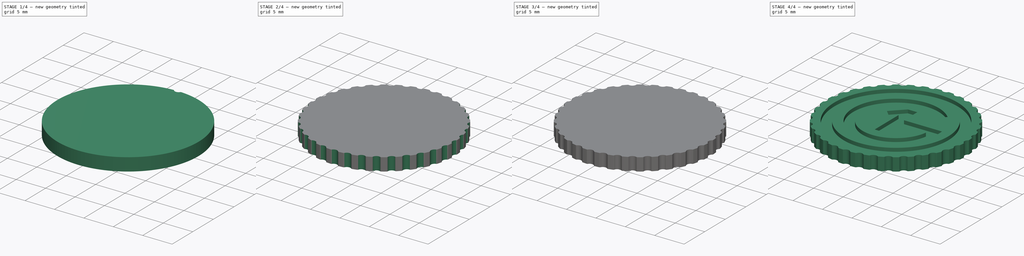
[diagram: build sequence overview — one tinted view per stage of 4, left to right]
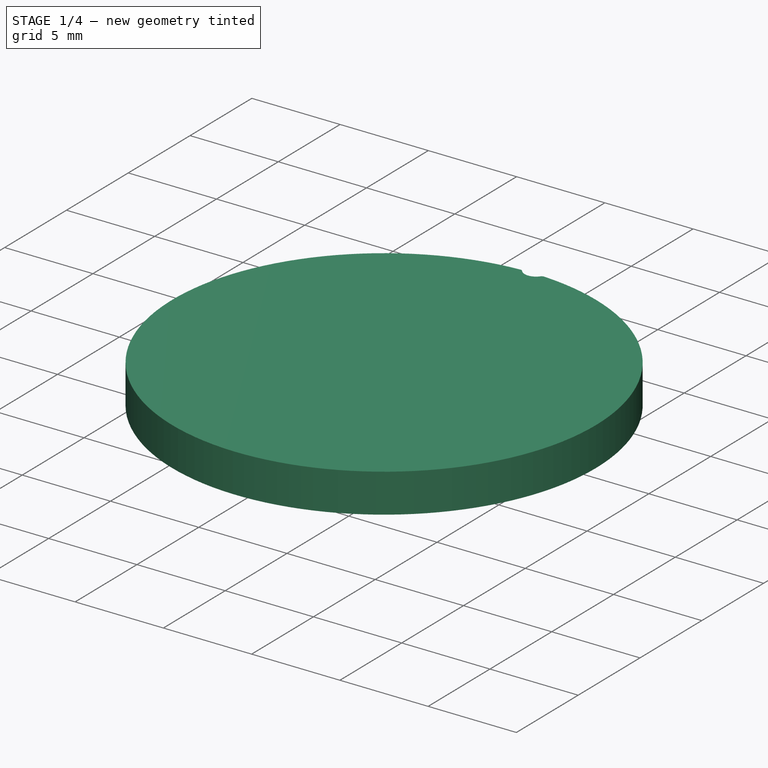
[diagram: stage 1 of 4 — iso view after this stage's code; geometry added in this stage tinted green]
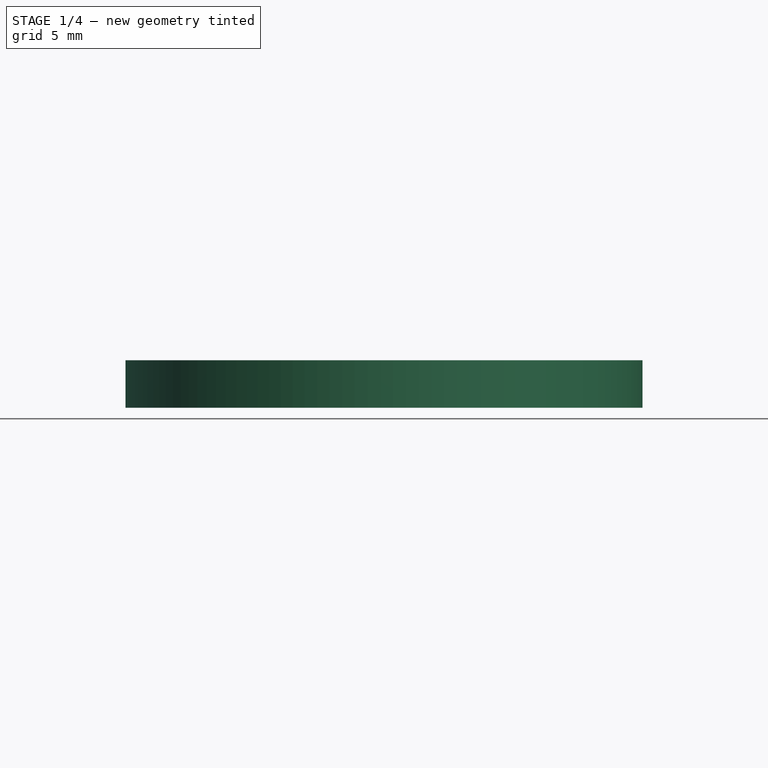
[diagram: stage 1 of 4 — front view after this stage's code; geometry added in this stage tinted green]
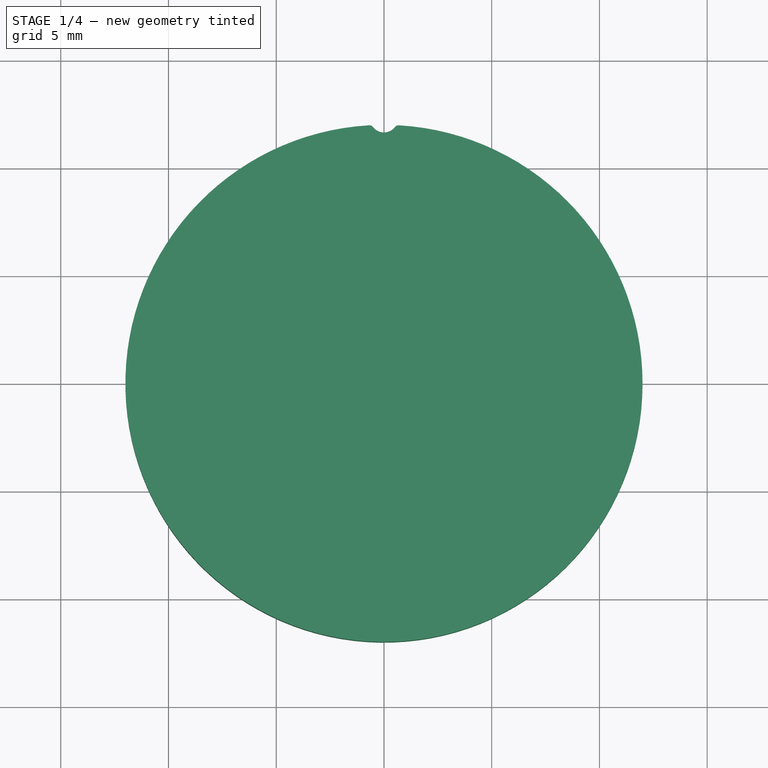
[diagram: stage 1 of 4 — top view after this stage's code; geometry added in this stage tinted green]
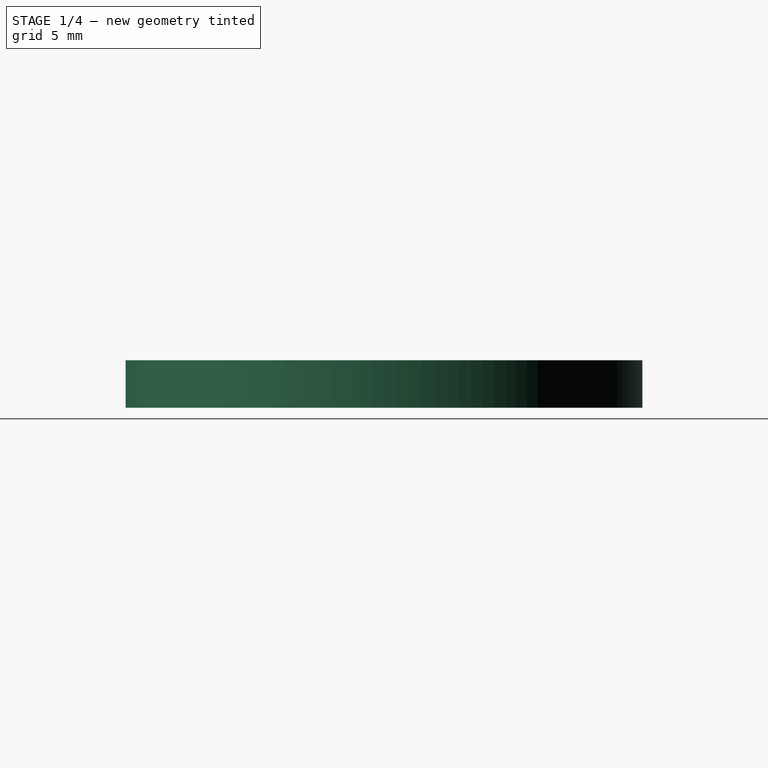
[diagram: stage 1 of 4 — right view after this stage's code; geometry added in this stage tinted green]
FCSTD DOCUMENT  (FreeCAD 0.21R33771 (Git))
Label: O1GCoin_multicolor
License: All rights reserved
LicenseURL: http://en.wikipedia.org/wiki/All_rights_reserved
objects: PartDesign::Body×5, Sketcher::SketchObject×4, PartDesign::Pad×3, Part::MultiFuse×2, PartDesign::FeatureBase×2, App::Part×1, PartDesign::Pocket×1, PartDesign::PolarPattern×1, Part::Cut×1
note: 23 computed .brp shape members not serialized (recipe doc carries the construction recipe); baked Part::Feature solids carry a one-line shape summary decoded from their .brp

FEATURE [PartDesign::Body] Body003  label="Surface1"
  Group = -> [Clone001]
  Origin = -> Origin004
  Tip = -> Clone001
FEATURE [Sketcher::SketchObject] Sketch009  label="C_Base"
  FullyConstrained = true
  MapMode = 5
  Support = -> [XY_Plane006]
  sketch-geometry (1):
    g0: Circle CenterX=0 CenterY=0 CenterZ=0 NormalX=0 NormalY=0 NormalZ=1 AngleXU=0 Radius=12
  constraints (2):
    c: Coincident(g0,g-1)
    c: Radius(g0) = 12  'R'
FEATURE [PartDesign::Pad] Pad002  label="C_Base_"
  AllowMultiFace = false
  Direction = (0,0,1)
  Length = 2.2
  Length2 = 100
  Profile = -> Sketch009
  Type = 0
FEATURE [Sketcher::SketchObject] Sketch008
  FullyConstrained = true
  MapMode = 5
  Support = -> [XY_Plane006]
  expr: Constraints[3] = <<C_Base>>.Constraints.R + 0.3 mm
  sketch-geometry (8):
    g0: ArcOfCircle CenterX=0 CenterY=12.3 CenterZ=0 NormalX=0 NormalY=0 NormalZ=1 AngleXU=0 Radius=0.65 StartAngle=3.7987 EndAngle=5.62607
    g1: Circle CenterX=0 CenterY=0 CenterZ=0 NormalX=0 NormalY=0 NormalZ=1 AngleXU=0 Radius=12
    g2: LineSegment StartX=-0.514644 StartY=11.903 StartZ=0 EndX=0.514644 EndY=11.903 EndZ=0
    g3: ArcOfCircle CenterX=0.672996 CenterY=11.7808 CenterZ=0 NormalX=0 NormalY=0 NormalZ=1 AngleXU=0 Radius=0.2 StartAngle=1.51373 EndAngle=2.48448
    g4: ArcOfCircle CenterX=-0.672996 CenterY=11.7808 CenterZ=0 NormalX=0 NormalY=0 NormalZ=1 AngleXU=0 Radius=0.2 StartAngle=0.657111 EndAngle=1.62784
    g5: LineSegment StartX=-0.684399 StartY=11.9805 StartZ=0 EndX=-0.684399 EndY=12.0805 EndZ=0
    g6: LineSegment StartX=-0.684399 StartY=12.0805 StartZ=0 EndX=0.684403 EndY=12.0805 EndZ=0
    g7: LineSegment StartX=0.684403 StartY=12.0805 StartZ=0 EndX=0.684403 EndY=11.9805 EndZ=0
  constraints (22):
    c: Coincident(g1,g-1)
    c: Radius(g1) = 12
    c: Radius(g0) = 0.65
    c: DistanceY(g1,g0) = 12.3
    c: PointOnObject(g0,g-2)
    c: Coincident(g2,g0)
    c: Coincident(g2,g0)
    c: Horizontal(g2)
    c: Tangent(g4,g0) = 1.5708
    c: Equal(g3,g4)
    c: Radius(g4) = 0.2
    c: Tangent(g3,g0) = 1.5708
    c: Tangent(g3,g1) = -1.5708
    c: PointOnObject(g4,g1)
    c: Coincident(g5,g4)
    c: Vertical(g5)
    c: Coincident(g6,g5)
    c: Horizontal(g6)
    c: Coincident(g7,g6)
    c: Coincident(g7,g3)
    c: Vertical(g7)
    c: DistanceY(g5,g5) = 0.1
FEATURE [PartDesign::Pocket] Pocket001
  AllowMultiFace = false
  BaseFeature = -> Pad002
  Direction = (0,0,-1)
  Length = 5
  Length2 = 100
  Profile = -> Sketch008
  Reversed = true
  Type = 1
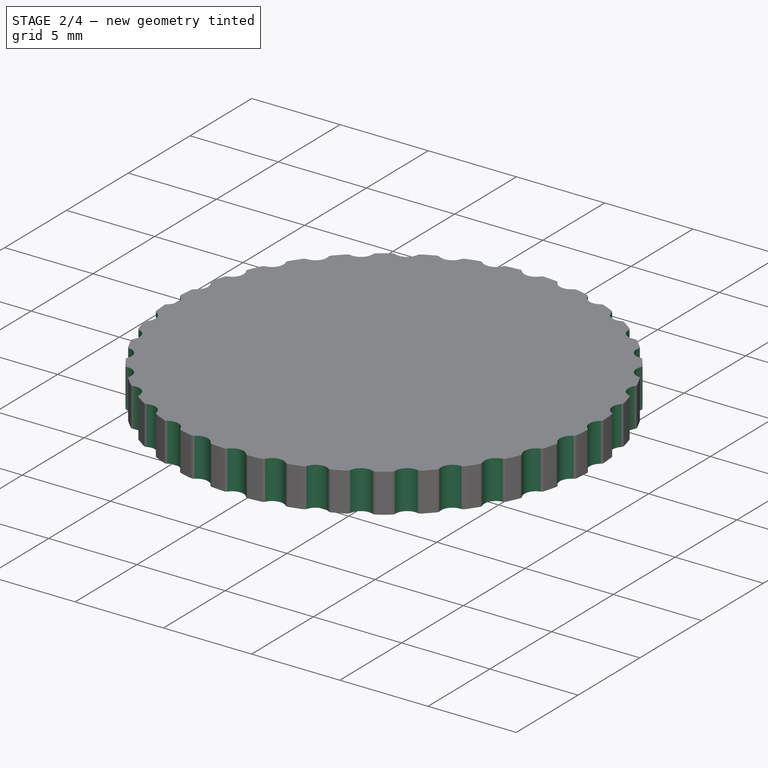
[diagram: stage 2 of 4 — iso view after this stage's code; geometry added in this stage tinted green]
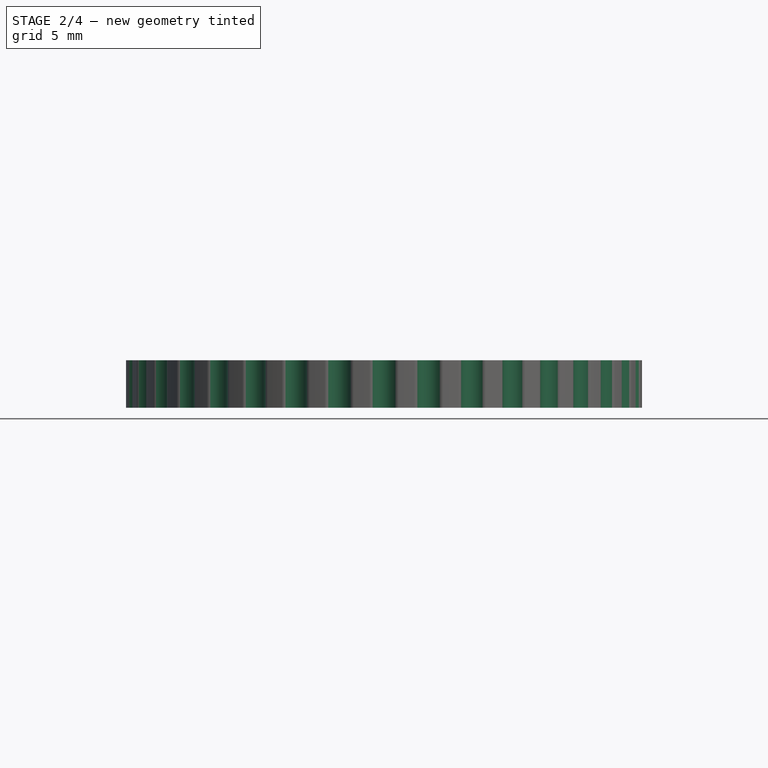
[diagram: stage 2 of 4 — front view after this stage's code; geometry added in this stage tinted green]
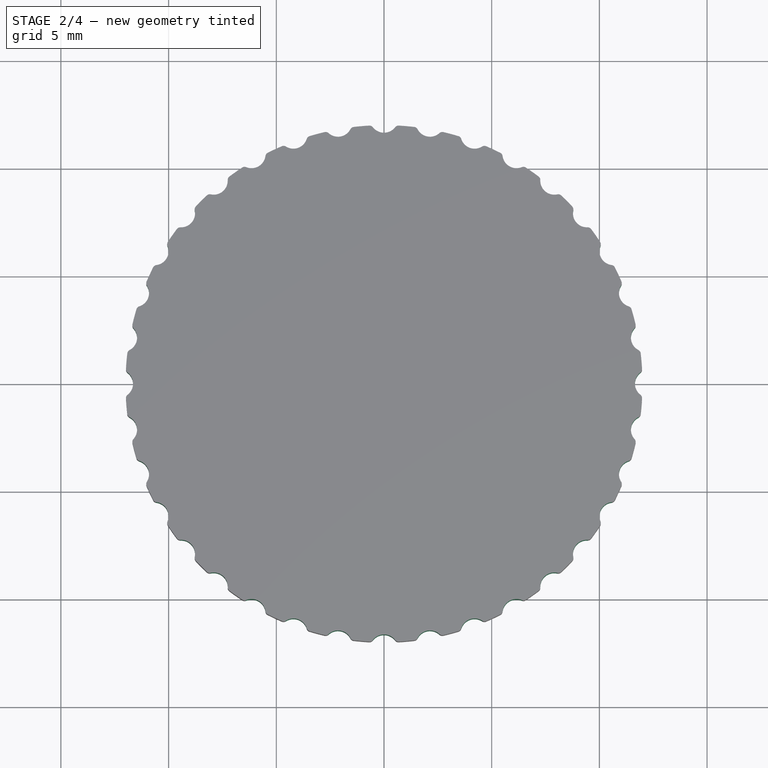
[diagram: stage 2 of 4 — top view after this stage's code; geometry added in this stage tinted green]
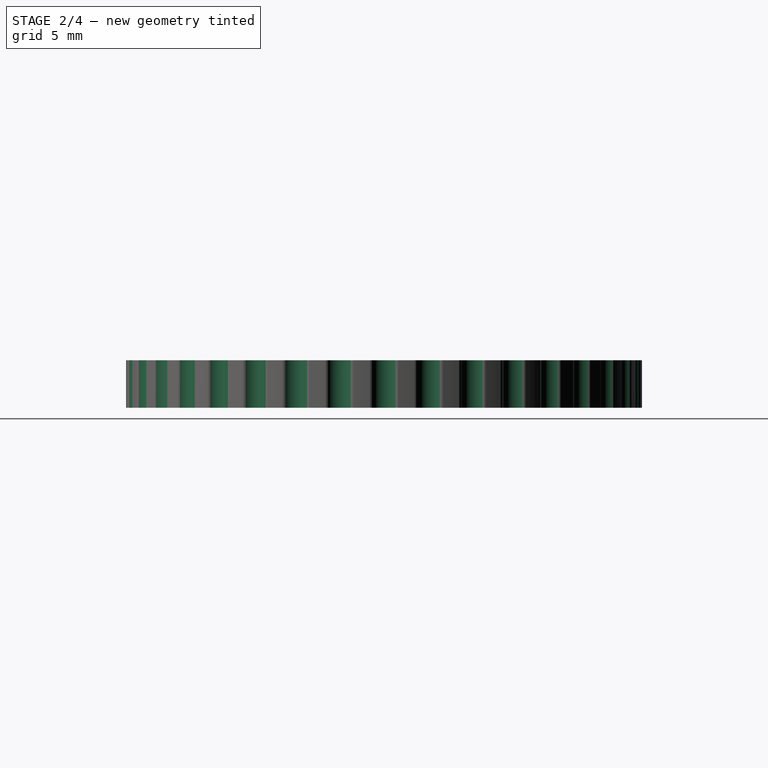
[diagram: stage 2 of 4 — right view after this stage's code; geometry added in this stage tinted green]
FEATURE [Sketcher::SketchObject] Sketch003  label="O"
  FullyConstrained = true
  MapMode = 5
  Support = -> [XY_Plane001]
  sketch-geometry (19):
    g0: Circle CenterX=0 CenterY=0 CenterZ=0 NormalX=0 NormalY=0 NormalZ=1 AngleXU=0 Radius=10.5
    g1: Circle CenterX=0 CenterY=0 CenterZ=0 NormalX=0 NormalY=0 NormalZ=1 AngleXU=0 Radius=8.9
    g2: ArcOfCircle CenterX=0 CenterY=0 CenterZ=0 NormalX=0 NormalY=0 NormalZ=1 AngleXU=0 Radius=7.3 StartAngle=0.785398 EndAngle=6.39299
    g3: ArcOfCircle CenterX=0 CenterY=0 CenterZ=0 NormalX=0 NormalY=0 NormalZ=1 AngleXU=0 Radius=5.7 StartAngle=0.785398 EndAngle=6.14237
    g4: LineSegment StartX=4.03051 StartY=4.03051 StartZ=0 EndX=5.16188 EndY=5.16188 EndZ=0
    g5: LineSegment StartX=0 StartY=0 StartZ=0 EndX=4.03051 EndY=4.03051 EndZ=0
    g6: LineSegment StartX=5.64358 StartY=-0.8 StartZ=0 EndX=0.8 EndY=-0.8 EndZ=0
    g7: LineSegment StartX=7.25603 StartY=0.8 StartZ=0 EndX=0.8 EndY=0.8 EndZ=0
    g8: LineSegment StartX=0.8 StartY=-0.8 StartZ=0 EndX=0.8 EndY=0.8 EndZ=0
    g9: LineSegment StartX=0.8 StartY=-0.8 StartZ=0 EndX=0.8 EndY=-4.03051 EndZ=0
    g10: LineSegment StartX=0.8 StartY=-4.03051 StartZ=0 EndX=-0.8 EndY=-4.03051 EndZ=0
    g11: LineSegment StartX=-0.8 StartY=-4.03051 StartZ=0 EndX=-0.8 EndY=1.76777 EndZ=0
    g12: LineSegment StartX=-0.8 StartY=1.76777 StartZ=0 EndX=-1.76777 EndY=0.8 EndZ=0
    g13: LineSegment StartX=-1.76777 StartY=0.8 StartZ=0 EndX=-2.89914 EndY=1.93137 EndZ=0
    g14: LineSegment StartX=-2.89914 StartY=1.93137 StartZ=0 EndX=-0.8 EndY=4.03051 EndZ=0
    g15: LineSegment StartX=-0.8 StartY=4.03051 StartZ=0 EndX=0.8 EndY=4.03051 EndZ=0
    g16: LineSegment StartX=0.8 StartY=4.03051 StartZ=0 EndX=0.8 EndY=0.8 EndZ=0
    g17: LineSegment StartX=0.8 StartY=4.03051 StartZ=0 EndX=4.03051 EndY=4.03051 EndZ=0
    g18: LineSegment StartX=-1.76777 StartY=0.8 StartZ=0 EndX=0.8 EndY=0.8 EndZ=0
  constraints (49):
    c: Coincident(g1,g0)
    c: Radius(g0) = 10.5
    c: Radius(g1) = 8.9
    c: Coincident(g0,g-1)
    c: Coincident(g4,g3)
    c: Coincident(g4,g2)
    c: Coincident(g5,g3)
    c: Radius(g2) = 7.3
    c: Radius(g3) = 5.7
    c: Coincident(g6,g3)
    c: Horizontal(g6)
    c: Coincident(g7,g2)
    c: Horizontal(g7)
    c: Coincident(g8,g6)
    c: Coincident(g8,g7)
    c: Symmetric(g7,g6,g-1)
    c: Equal(g8,g4)
    c: Coincident(g6,g9)
    c: Vertical(g9)
    c: Coincident(g9,g10)
    c: Coincident(g10,g11)
    c: Vertical(g11)
    c: Coincident(g11,g12)
    c: Coincident(g12,g13)
    c: Coincident(g13,g14)
    c: Coincident(g14,g15)
    c: Horizontal(g15)
    c: Coincident(g15,g16)
    c: Coincident(g16,g7)
    c: Vertical(g16)
    c: Symmetric(g10,g9,g-2)
    c: Equal(g8,g10)
    c: Equal(g10,g13)
    c: Equal(g13,g15)
    c: Angle(g-1,g5) = 0.785398
    c: Parallel(g5,g12)
    c: Parallel(g12,g14)
    c: Perpendicular(g12,g13)
    c: Equal(g9,g16)
    c: Coincident(g17,g15)
    c: Coincident(g17,g3)
    c: Horizontal(g17)
    c: Coincident(g18,g12)
    c: Coincident(g18,g7)
    c: Horizontal(g18)
    c: Coincident(g2,g3)
    c: Coincident(g2,g5)
    c: Coincident(g2,g-1)
    c: PointOnObject(g0,g4)
FEATURE [Sketcher::SketchObject] Sketch004  label="1G"
  FullyConstrained = true
  MapMode = 5
  Support = -> [XY_Plane002]
  sketch-geometry (19):
    g0: Circle CenterX=0 CenterY=0 CenterZ=0 NormalX=0 NormalY=0 NormalZ=1 AngleXU=0 Radius=10.5
    g1: Circle CenterX=0 CenterY=0 CenterZ=0 NormalX=0 NormalY=0 NormalZ=1 AngleXU=0 Radius=8.9
    g2: ArcOfCircle CenterX=0 CenterY=0 CenterZ=0 NormalX=0 NormalY=0 NormalZ=1 AngleXU=0 Radius=7.3 StartAngle=0.785398 EndAngle=6.39299
    g3: ArcOfCircle CenterX=0 CenterY=0 CenterZ=0 NormalX=0 NormalY=0 NormalZ=1 AngleXU=0 Radius=5.7 StartAngle=0.785398 EndAngle=6.14237
    g4: LineSegment StartX=4.03051 StartY=4.03051 StartZ=0 EndX=5.16188 EndY=5.16188 EndZ=0
    g5: LineSegment StartX=0 StartY=0 StartZ=0 EndX=4.03051 EndY=4.03051 EndZ=0
    g6: LineSegment StartX=5.64358 StartY=-0.8 StartZ=0 EndX=0.8 EndY=-0.8 EndZ=0
    g7: LineSegment StartX=7.25603 StartY=0.8 StartZ=0 EndX=0.8 EndY=0.8 EndZ=0
    g8: LineSegment StartX=0.8 StartY=-0.8 StartZ=0 EndX=0.8 EndY=0.8 EndZ=0
    g9: LineSegment StartX=0.8 StartY=-0.8 StartZ=0 EndX=0.8 EndY=-4.03051 EndZ=0
    g10: LineSegment StartX=0.8 StartY=-4.03051 StartZ=0 EndX=-0.8 EndY=-4.03051 EndZ=0
    g11: LineSegment StartX=-0.8 StartY=-4.03051 StartZ=0 EndX=-0.8 EndY=1.76777 EndZ=0
    g12: LineSegment StartX=-0.8 StartY=1.76777 StartZ=0 EndX=-1.76777 EndY=0.8 EndZ=0
    g13: LineSegment StartX=-1.76777 StartY=0.8 StartZ=0 EndX=-2.89914 EndY=1.93137 EndZ=0
    g14: LineSegment StartX=-2.89914 StartY=1.93137 StartZ=0 EndX=-0.8 EndY=4.03051 EndZ=0
    g15: LineSegment StartX=-0.8 StartY=4.03051 StartZ=0 EndX=0.8 EndY=4.03051 EndZ=0
    g16: LineSegment StartX=0.8 StartY=4.03051 StartZ=0 EndX=0.8 EndY=0.8 EndZ=0
    g17: LineSegment StartX=0.8 StartY=4.03051 StartZ=0 EndX=4.03051 EndY=4.03051 EndZ=0
    g18: LineSegment StartX=-1.76777 StartY=0.8 StartZ=0 EndX=0.8 EndY=0.8 EndZ=0
  constraints (49):
    c: Coincident(g1,g0)
    c: Radius(g0) = 10.5
    c: Radius(g1) = 8.9
    c: Coincident(g0,g-1)
    c: Coincident(g4,g3)
    c: Coincident(g4,g2)
    c: Coincident(g5,g3)
    c: Parallel(g5,g4)
    c: Radius(g2) = 7.3
    c: Radius(g3) = 5.7
    c: Coincident(g6,g3)
    c: Horizontal(g6)
    c: Coincident(g7,g2)
    c: Horizontal(g7)
    c: Coincident(g8,g6)
    c: Coincident(g8,g7)
    c: Symmetric(g7,g6,g-1)
    c: Equal(g8,g4)
    c: Coincident(g6,g9)
    c: Vertical(g9)
    c: Coincident(g9,g10)
    c: Coincident(g10,g11)
    c: Vertical(g11)
    c: Coincident(g11,g12)
    c: Coincident(g12,g13)
    c: Coincident(g13,g14)
    c: Coincident(g14,g15)
    c: Horizontal(g15)
    c: Coincident(g15,g16)
    c: Coincident(g16,g7)
    c: Vertical(g16)
    c: Symmetric(g10,g9,g-2)
    c: Equal(g8,g10)
    c: Equal(g10,g13)
    c: Equal(g13,g15)
    c: Angle(g-1,g5) = 0.785398
    c: Parallel(g5,g12)
    c: Parallel(g12,g14)
    c: Perpendicular(g12,g13)
    c: Equal(g9,g16)
    c: Coincident(g17,g15)
    c: Coincident(g17,g3)
    c: Horizontal(g17)
    c: Coincident(g18,g12)
    c: Coincident(g18,g7)
    c: Horizontal(g18)
    c: Coincident(g2,g3)
    c: Coincident(g2,g5)
    c: Coincident(g2,g-1)
FEATURE [PartDesign::Pad] Pad  label="O_"
  AllowMultiFace = false
  Direction = (0,0,1)
  Length = 0.6
  Length2 = 100
  Profile = -> Sketch003
  Type = 0
FEATURE [PartDesign::Body] Body  label="O__"
  Group = -> [Sketch003,Pad]
  Origin = -> Origin001
  Tip = -> Pad
FEATURE [PartDesign::Pad] Pad001  label="1G_"
  AllowMultiFace = false
  Direction = (0,0,1)
  Length = 0.6
  Length2 = 100
  Profile = -> Sketch004
  Type = 0
FEATURE [PartDesign::PolarPattern] PolarPattern001
  Angle = 360
  Axis = -> Sketch008 [N_Axis]
  BaseFeature = -> Pocket001
  Occurrences = 36
  Originals = -> [Pocket001]
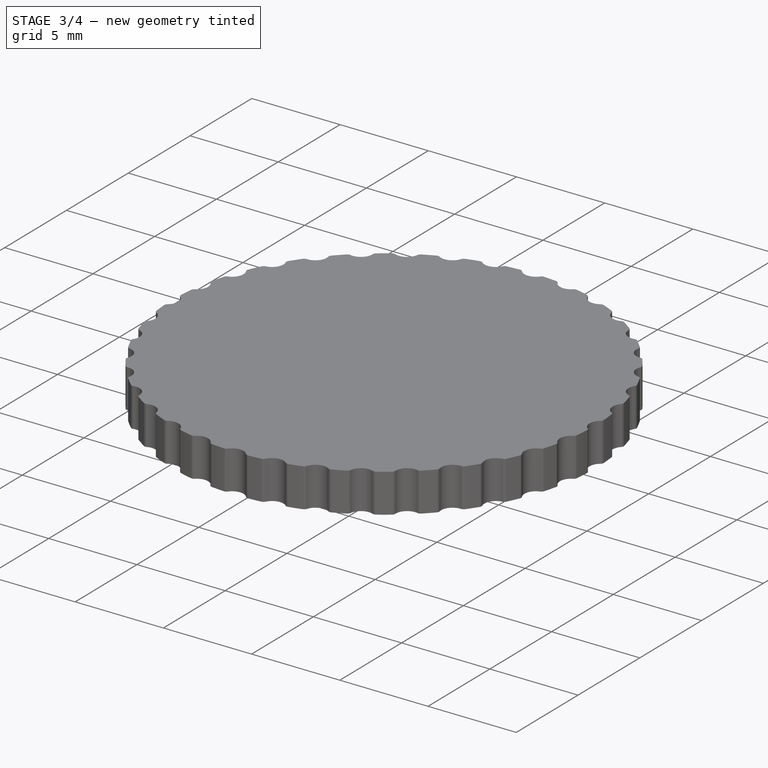
[diagram: stage 3 of 4 — iso view after this stage's code; geometry added in this stage tinted green]
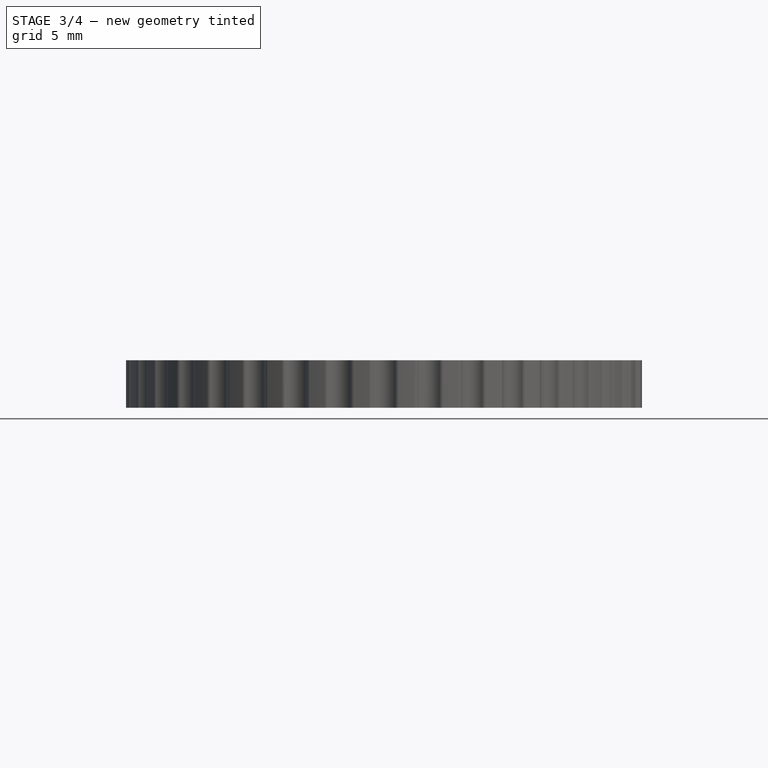
[diagram: stage 3 of 4 — front view after this stage's code; geometry added in this stage tinted green]
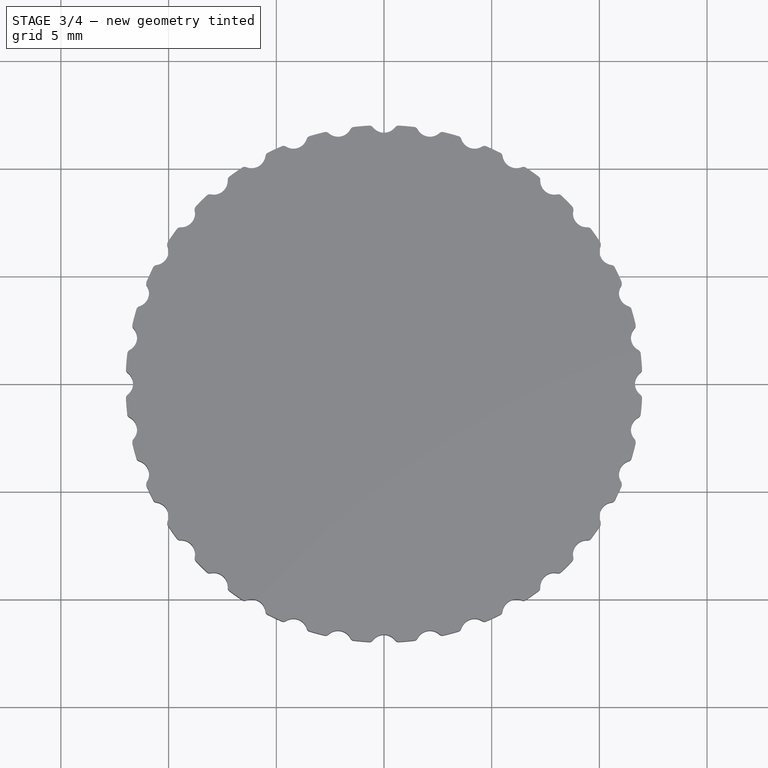
[diagram: stage 3 of 4 — top view after this stage's code; geometry added in this stage tinted green]
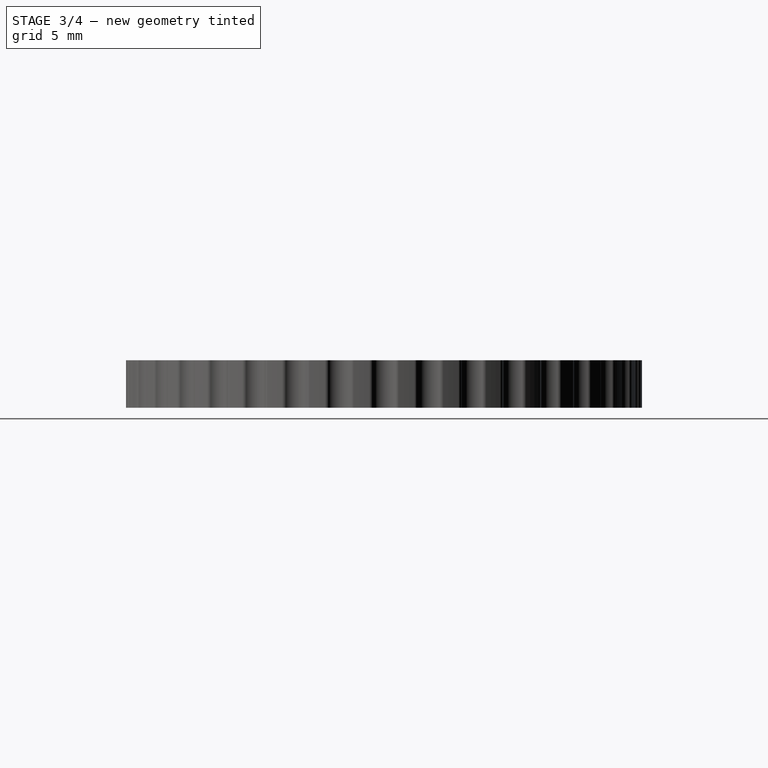
[diagram: stage 3 of 4 — right view after this stage's code; geometry added in this stage tinted green]
FEATURE [PartDesign::Body] Body001  label="1G__"
  Group = -> [Sketch004,Pad001]
  Origin = -> Origin002
  Tip = -> Pad001
FEATURE [App::Part] Part
  Group = -> [Body,Body001]
  Origin = -> Origin
FEATURE [Part::MultiFuse] Fusion  label="Top"
  Placement = pos=(0,0,1.6) rot=(0,0,1;0rad)
  Shapes = -> [Body,Body001]
  expr: .Placement.Base.z = Pad002.Length - <<O_>>.Length
FEATURE [PartDesign::FeatureBase] Clone
  BaseFeature = -> Fusion
FEATURE [PartDesign::Body] Body002  label="Bottom"
  BaseFeature = -> Fusion
  Group = -> [Clone]
  Origin = -> Origin003
  Placement = pos=(0,0,0.6) rot=(0,1,0;3.14159rad)
  Tip = -> Clone
FEATURE [Part::MultiFuse] Fusion001  label="Insert"
  Shapes = -> [Body002,Fusion]
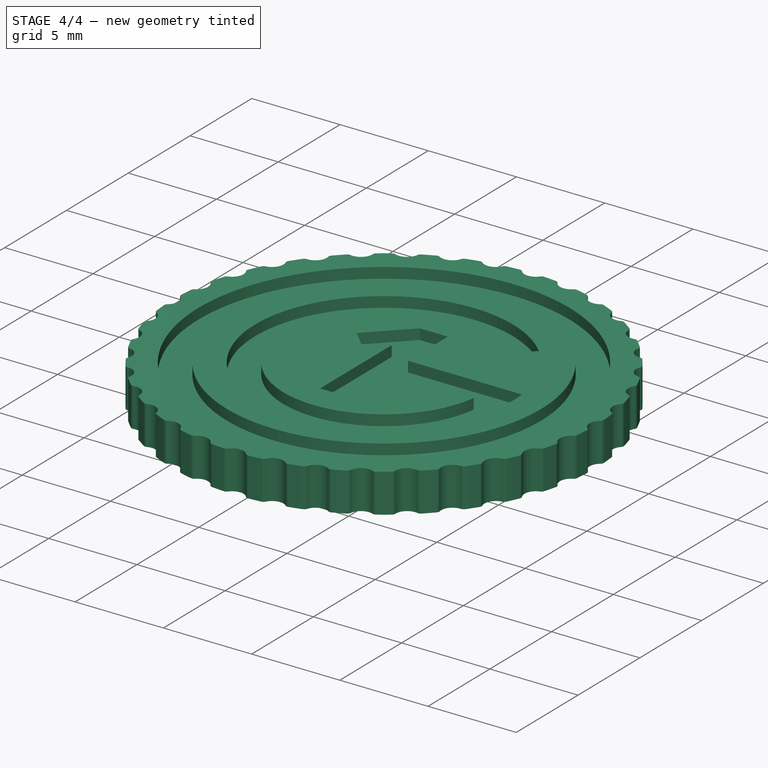
[diagram: stage 4 of 4 — iso view after this stage's code; geometry added in this stage tinted green]
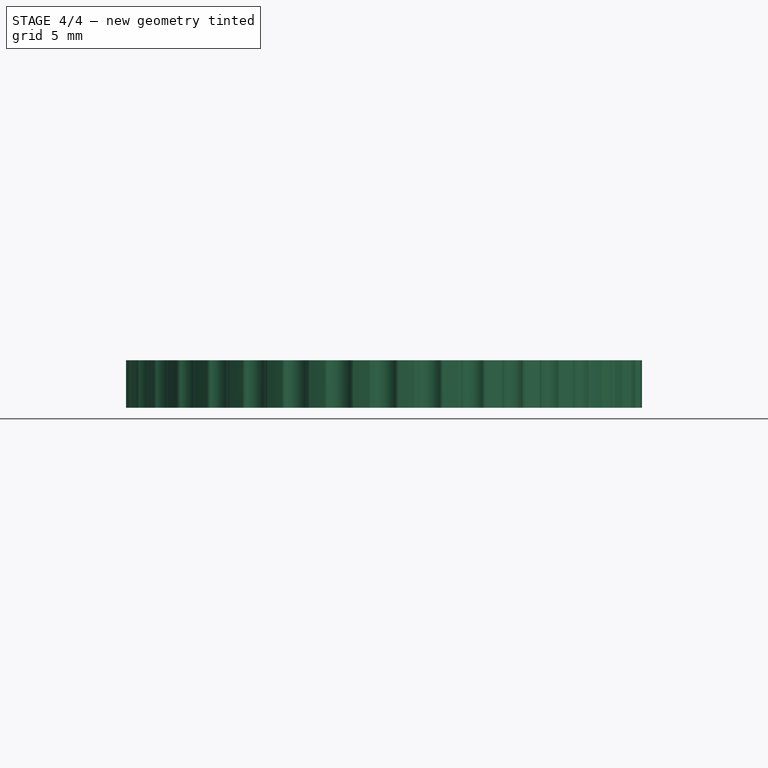
[diagram: stage 4 of 4 — front view after this stage's code; geometry added in this stage tinted green]
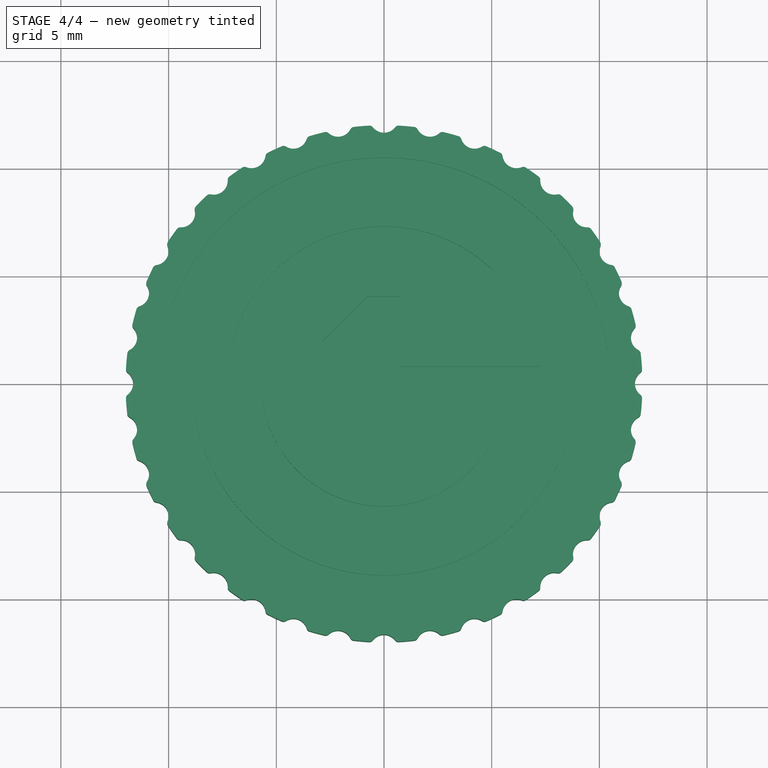
[diagram: stage 4 of 4 — top view after this stage's code; geometry added in this stage tinted green]
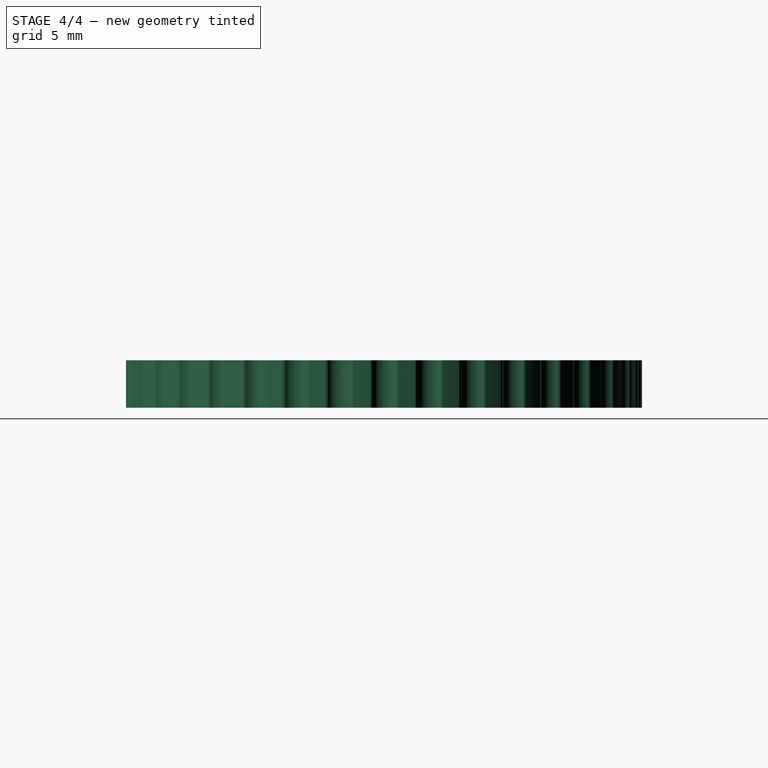
[diagram: stage 4 of 4 — right view after this stage's code; geometry added in this stage tinted green]
FEATURE [PartDesign::FeatureBase] Clone001
  BaseFeature = -> Fusion001
FEATURE [PartDesign::Body] Body004  label="Coin"
  Group = -> [Pad002,Pocket001,PolarPattern001,Sketch009,Sketch008]
  Origin = -> Origin006
  Tip = -> PolarPattern001
FEATURE [Part::Cut] Cut  label="Main"
  Base = -> Body004
  Tool = -> Body003
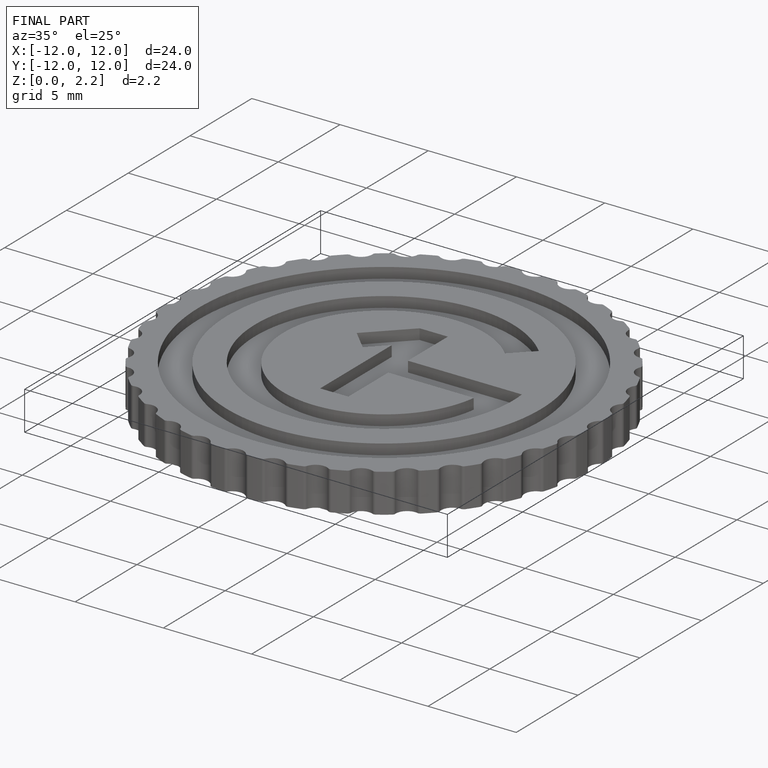
[diagram: finished part — iso view with bounding-box wireframe]
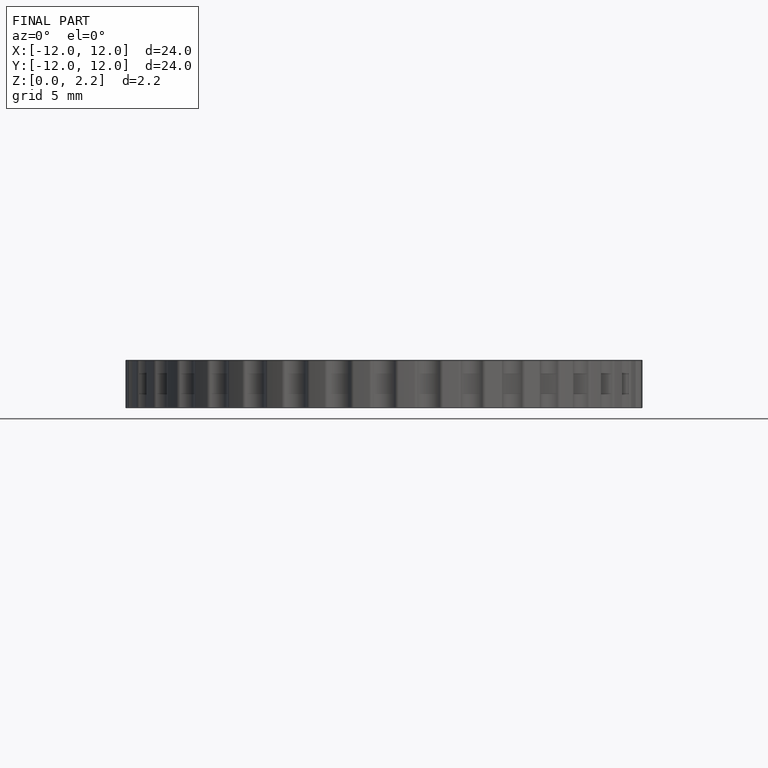
[diagram: finished part — front view with bounding-box wireframe]
